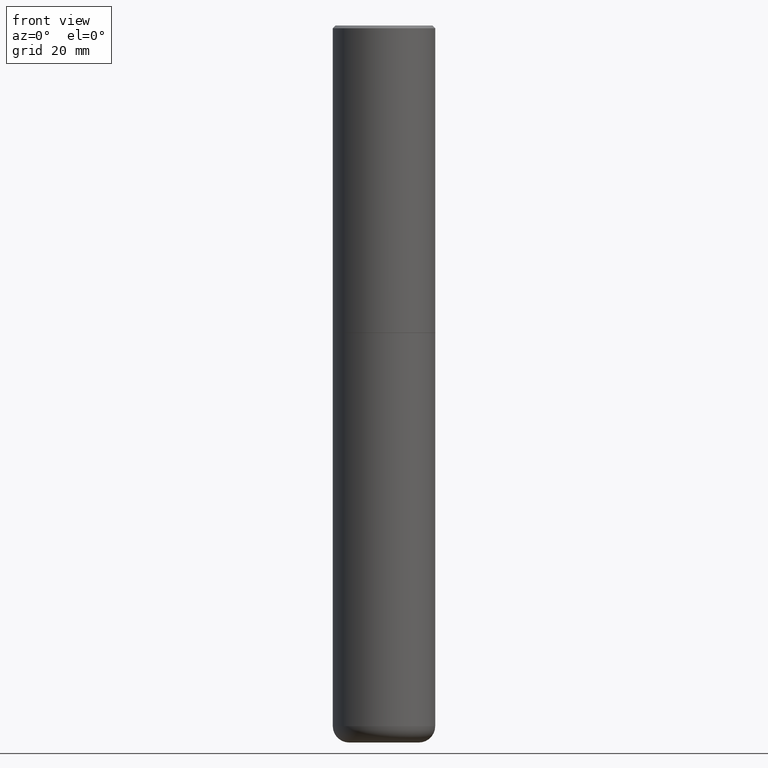
[diagram: clean part render]
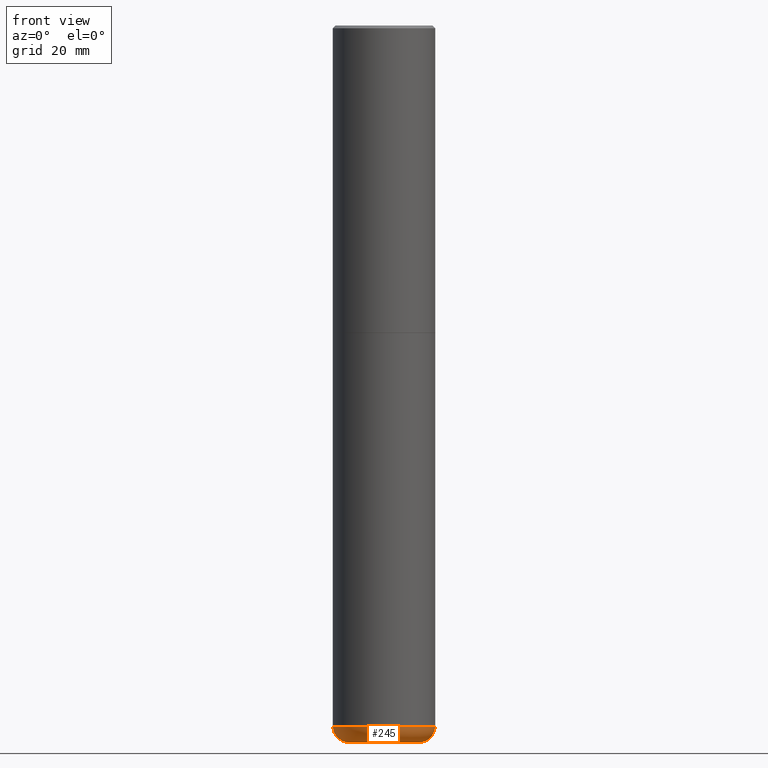
[diagram: same view with one face highlighted and labeled with its STEP entity id]
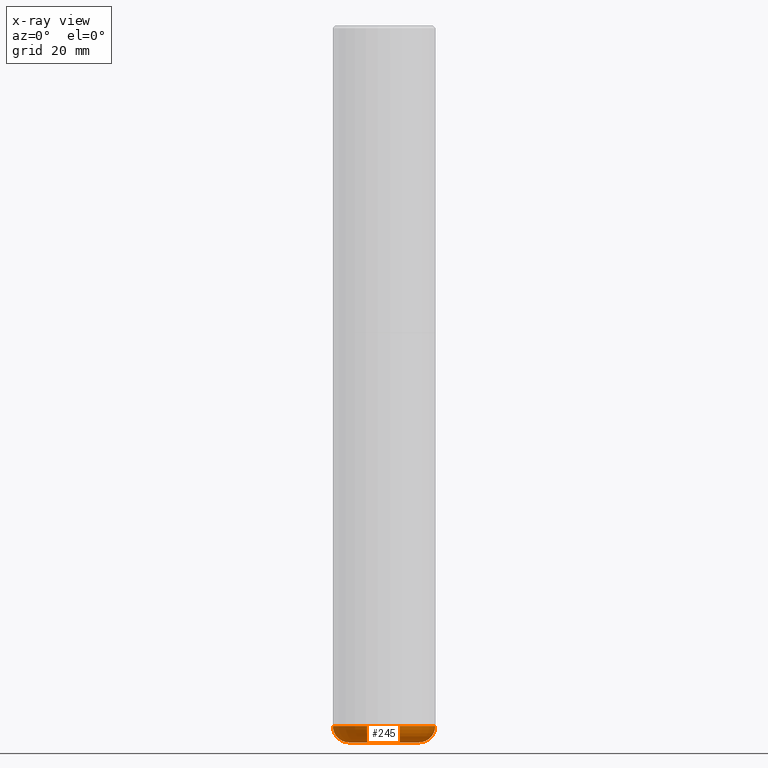
[diagram: x-ray of the same camera — body ghosted, the highlighted face saturated]
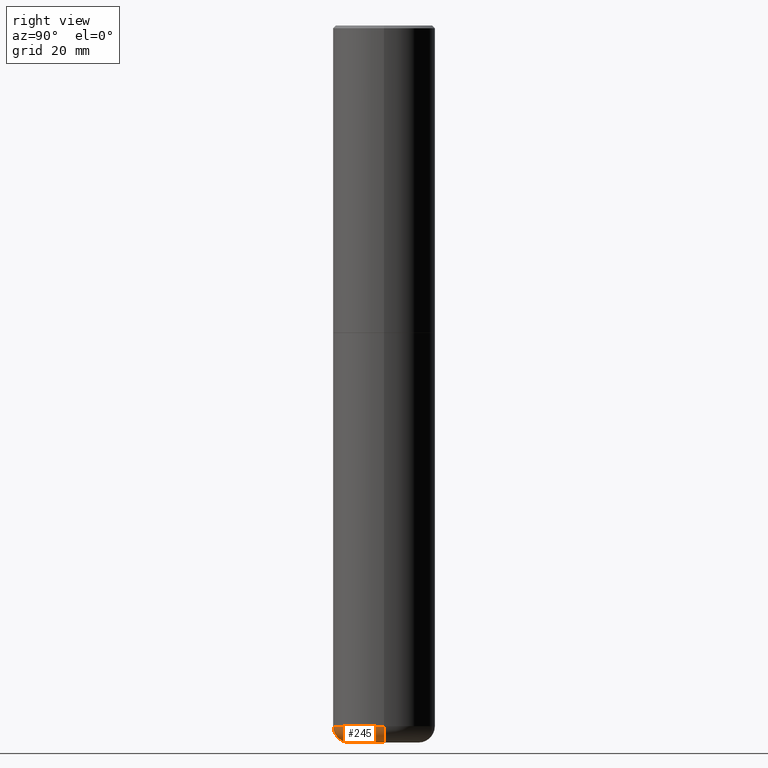
[diagram: same view with one face highlighted and labeled with its STEP entity id]
A machine part, front view. The second image highlights one B-rep face of the part: STEP entity #245.
The next image is the same camera in x-ray: the body ghosted, the highlighted face saturated — about 0% of this face is hidden behind the body in this view.
A second angle (right view) of the same face is appended — the face is thin or edge-on in the first view.
In plain terms, the highlighted toroidal blend (fillet) surface has major radius 6.477 mm and minor (blend) radius 3.048 mm.
Its self-contained STEP definition (entity closure, byte-faithful):
#28 = AXIS2_PLACEMENT_3D ( 'NONE', #398, #324, #184 ) ;
#35 = DIRECTION ( 'NONE',  ( -2.445468806185136597E-29, 3.491481338843145583E-15, 1.000000000000000000 ) ) ;
#40 = FACE_OUTER_BOUND ( 'NONE', #221, .T. ) ;
#42 = CARTESIAN_POINT ( 'NONE',  ( 0.2550000000000000044, -1.969195475107533334E-14, -5.129999999999999893 ) ) ;
#51 = EDGE_CURVE ( 'NONE', #251, #180, #346, .T. ) ;
#61 = DIRECTION ( 'NONE',  ( 1.000000000000000000, -6.982962677686263555E-15, 4.883557194083111219E-29 ) ) ;
#78 = CARTESIAN_POINT ( 'NONE',  ( -0.2550000000000000044, -1.609941529207708187E-14, -5.129999999999999893 ) ) ;
#79 = DIRECTION ( 'NONE',  ( 1.000000000000000000, -6.982962677686271444E-15, 0.000000000000000000 ) ) ;
#99 = DIRECTION ( 'NONE',  ( -1.000000000000000000, 7.105427357600993970E-15, 0.000000000000000000 ) ) ;
#111 = CARTESIAN_POINT ( 'NONE',  ( -0.2550000000000000044, -1.588257853095161128E-14, -5.249999999999999112 ) ) ;
#121 = ORIENTED_EDGE ( 'NONE', *, *, #303, .T. ) ;
#135 = ORIENTED_EDGE ( 'NONE', *, *, #342, .F. ) ;
#137 = DIRECTION ( 'NONE',  ( 1.000000000000000000, -6.982962677686260400E-15, 0.000000000000000000 ) ) ;
#158 = CARTESIAN_POINT ( 'NONE',  ( 0.3749999999999996669, -2.052991027239768345E-14, -5.129999999999999893 ) ) ;
#161 = ORIENTED_EDGE ( 'NONE', *, *, #243, .F. ) ;
#163 = CARTESIAN_POINT ( 'NONE',  ( 0.2550000000000000044, -2.011093251173650682E-14, -5.249999999999999112 ) ) ;
#166 = DIRECTION ( 'NONE',  ( -6.982962677686266711E-15, -1.000000000000000000, 3.491481338843145583E-15 ) ) ;
#177 = AXIS2_PLACEMENT_3D ( 'NONE', #78, #234, #99 ) ;
#180 = VERTEX_POINT ( 'NONE', #158 ) ;
#183 = TOROIDAL_SURFACE ( 'NONE', #204, 0.2550000000000000044, 0.1199999999999993711 ) ;
#184 = DIRECTION ( 'NONE',  ( 1.000000000000000000, -6.982962677686261189E-15, 0.000000000000000000 ) ) ;
#204 = AXIS2_PLACEMENT_3D ( 'NONE', #326, #297, #61 ) ;
#221 = EDGE_LOOP ( 'NONE', ( #135, #121, #246, #161 ) ) ;
#227 = CARTESIAN_POINT ( 'NONE',  ( 1.283871123247196489E-28, -1.833027702892651007E-14, -5.249999999999999112 ) ) ;
#234 = DIRECTION ( 'NONE',  ( 7.105427357601001859E-15, 1.000000000000000000, -3.491481338843145583E-15 ) ) ;
#243 = EDGE_CURVE ( 'NONE', #293, #180, #271, .T. ) ;
#245 = ADVANCED_FACE ( 'NONE', ( #40 ), #183, .T. ) ;
#246 = ORIENTED_EDGE ( 'NONE', *, *, #51, .T. ) ;
#251 = VERTEX_POINT ( 'NONE', #163 ) ;
#271 = CIRCLE ( 'NONE', #28, 0.3750000000000000555 ) ;
#293 = VERTEX_POINT ( 'NONE', #300 ) ;
#297 = DIRECTION ( 'NONE',  ( -2.445468806185136597E-29, 3.491481338843145583E-15, 1.000000000000000000 ) ) ;
#300 = CARTESIAN_POINT ( 'NONE',  ( -0.3749999999999996669, -1.524676400916496405E-14, -5.129999999999999893 ) ) ;
#303 = EDGE_CURVE ( 'NONE', #354, #251, #355, .T. ) ;
#322 = AXIS2_PLACEMENT_3D ( 'NONE', #227, #35, #137 ) ;
#324 = DIRECTION ( 'NONE',  ( -2.445468806185136597E-29, 3.491481338843145583E-15, 1.000000000000000000 ) ) ;
#326 = CARTESIAN_POINT ( 'NONE',  ( 1.254525497572975083E-28, -1.791129926826533659E-14, -5.129999999999999893 ) ) ;
#342 = EDGE_CURVE ( 'NONE', #354, #293, #384, .T. ) ;
#346 = CIRCLE ( 'NONE', #402, 0.1199999999999993988 ) ;
#354 = VERTEX_POINT ( 'NONE', #111 ) ;
#355 = CIRCLE ( 'NONE', #322, 0.2550000000000000044 ) ;
#384 = CIRCLE ( 'NONE', #177, 0.1199999999999993988 ) ;
#398 = CARTESIAN_POINT ( 'NONE',  ( 1.254525497572975083E-28, -1.791129926826533659E-14, -5.129999999999999893 ) ) ;
#402 = AXIS2_PLACEMENT_3D ( 'NONE', #42, #166, #79 ) ;